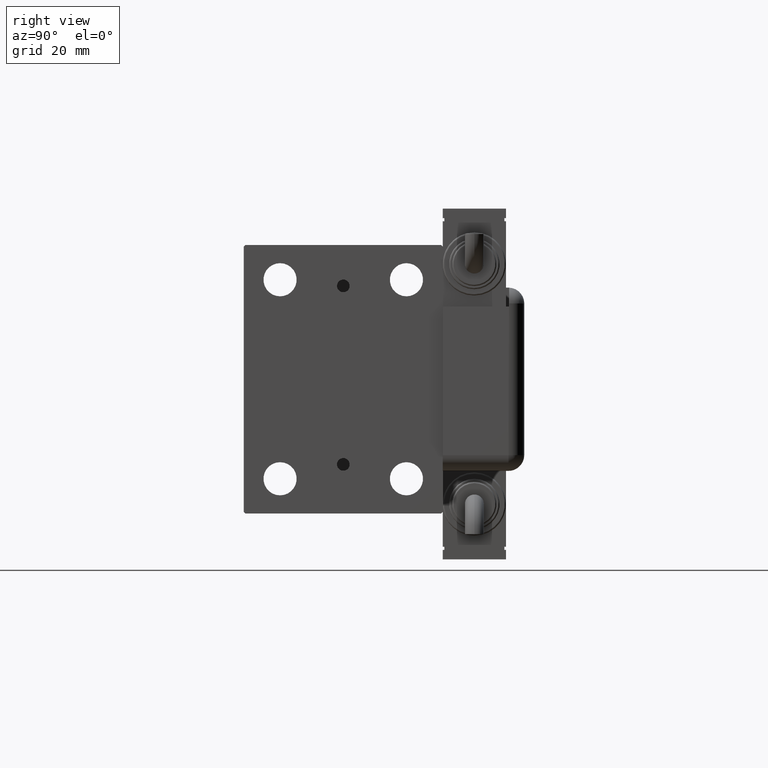
[diagram: clean part render]
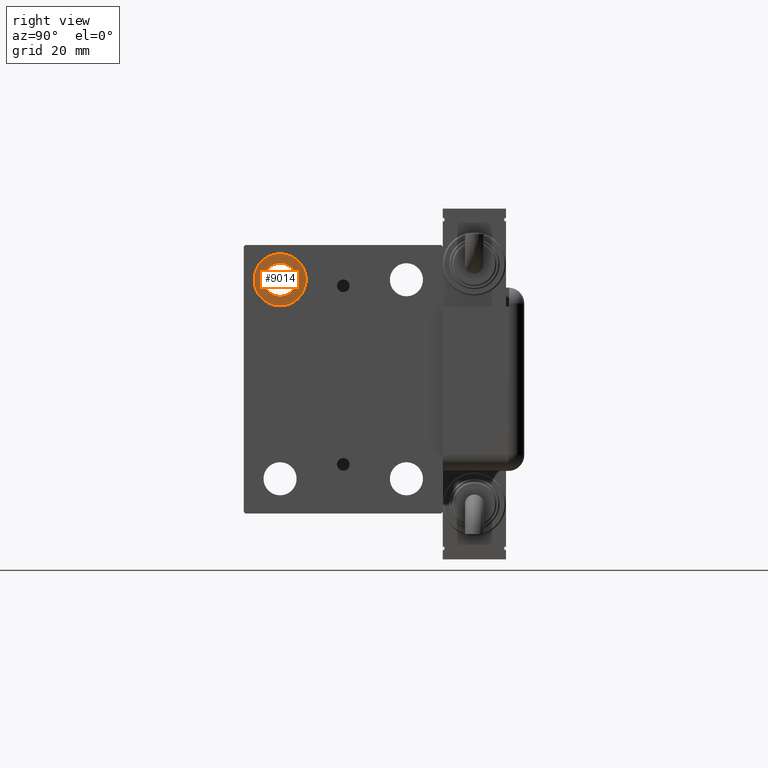
[diagram: same view with one face highlighted and labeled with its STEP entity id]
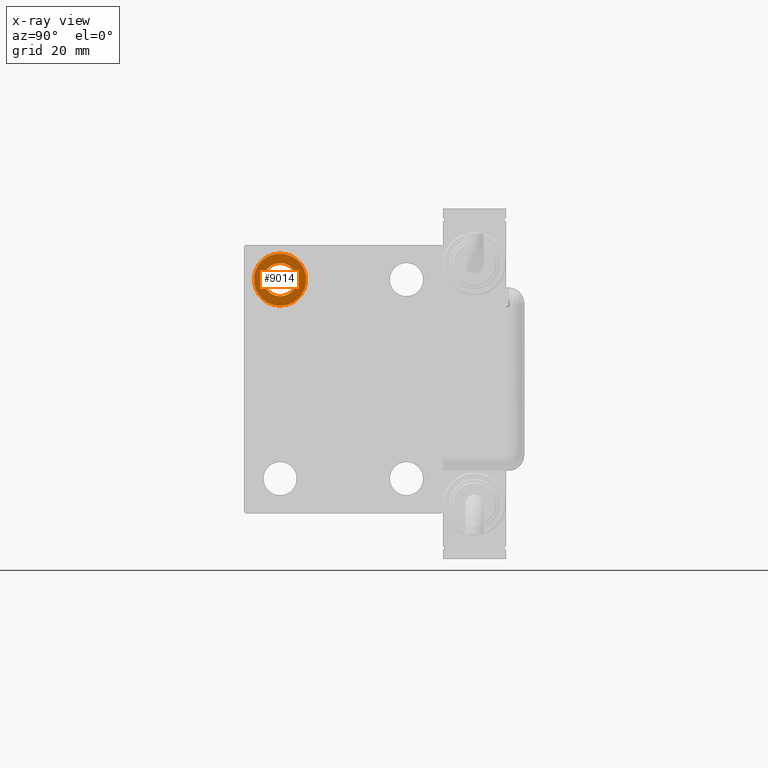
[diagram: x-ray of the same camera — body ghosted, the highlighted face saturated]
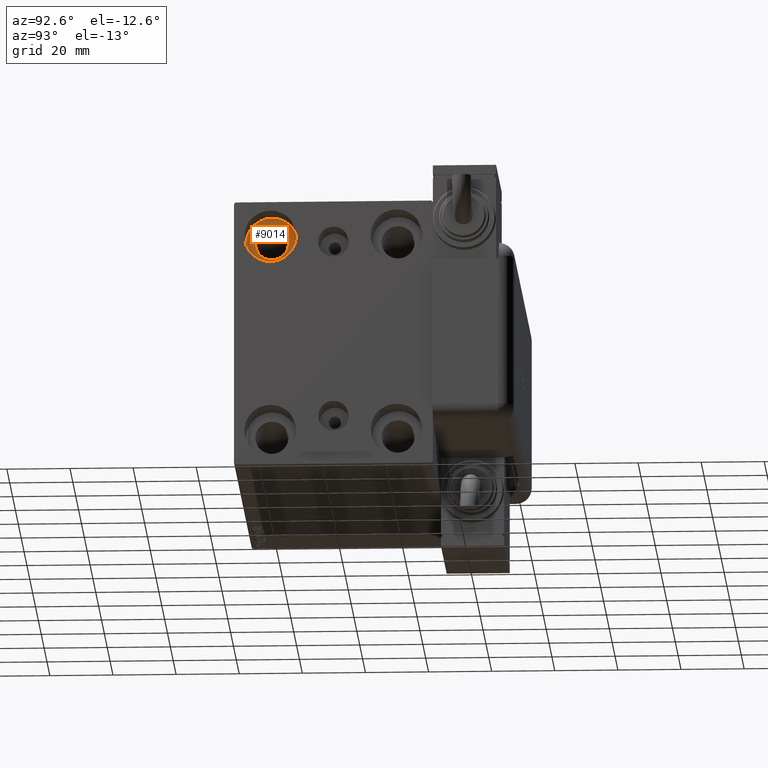
[diagram: same view with one face highlighted and labeled with its STEP entity id]
A machine part, right view. The second image highlights one B-rep face of the part: STEP entity #9014.
The next image is the same camera in x-ray: the body ghosted, the highlighted face saturated — about 0% of this face is hidden behind the body in this view.
A second angle (auxiliary view) of the same face is appended — the face is thin or edge-on in the first view.
In plain terms, the highlighted planar face has unit normal (1, 0, 0).
Its self-contained STEP definition (entity closure, byte-faithful):
#4421 = DIRECTION ( 'NONE',  ( -1.000000000000000000, -0.000000000000000000, -0.000000000000000000 ) ) ;
#4558 = AXIS2_PLACEMENT_3D ( 'NONE', #21754, #20854, #21154 ) ;
#5292 = CARTESIAN_POINT ( 'NONE',  ( 112.0000000000000000, -19.99999999999999645, 26.25000000000000355 ) ) ;
#8175 = EDGE_LOOP ( 'NONE', ( #11412, #45120 ) ) ;
#9014 = ADVANCED_FACE ( 'NONE', ( #10293, #28762 ), #19665, .T. ) ;
#10293 = FACE_OUTER_BOUND ( 'NONE', #8175, .T. ) ;
#11412 = ORIENTED_EDGE ( 'NONE', *, *, #26338, .F. ) ;
#16112 = CARTESIAN_POINT ( 'NONE',  ( 112.0000000000000000, -19.99999999999999645, 31.50000000000000000 ) ) ;
#19665 = PLANE ( 'NONE',  #4558 ) ;
#20854 = DIRECTION ( 'NONE',  ( 1.000000000000000000, 0.000000000000000000, -0.000000000000000000 ) ) ;
#21154 = DIRECTION ( 'NONE',  ( 0.000000000000000000, 0.000000000000000000, 1.000000000000000000 ) ) ;
#21754 = CARTESIAN_POINT ( 'NONE',  ( 112.0000000000000000, 0.000000000000000000, 0.000000000000000000 ) ) ;
#22729 = CIRCLE ( 'NONE', #50805, 5.249999999999997335 ) ;
#24809 = CARTESIAN_POINT ( 'NONE',  ( 112.0000000000000000, -19.99999999999999645, 31.50000000000000000 ) ) ;
#25686 = AXIS2_PLACEMENT_3D ( 'NONE', #24809, #56095, #52125 ) ;
#26338 = EDGE_CURVE ( 'NONE', #40971, #58473, #39783, .T. ) ;
#27322 = CIRCLE ( 'NONE', #32173, 8.249999999999992895 ) ;
#27921 = CARTESIAN_POINT ( 'NONE',  ( 112.0000000000000000, -19.99999999999999645, 36.75000000000000000 ) ) ;
#28762 = FACE_BOUND ( 'NONE', #59697, .T. ) ;
#29195 = VERTEX_POINT ( 'NONE', #27921 ) ;
#30263 = ORIENTED_EDGE ( 'NONE', *, *, #48810, .T. ) ;
#30333 = DIRECTION ( 'NONE',  ( -1.000000000000000000, -0.000000000000000000, -0.000000000000000000 ) ) ;
#30621 = ORIENTED_EDGE ( 'NONE', *, *, #49829, .T. ) ;
#32173 = AXIS2_PLACEMENT_3D ( 'NONE', #16112, #30333, #53415 ) ;
#38573 = EDGE_CURVE ( 'NONE', #58473, #40971, #27322, .T. ) ;
#39783 = CIRCLE ( 'NONE', #41690, 8.249999999999992895 ) ;
#40971 = VERTEX_POINT ( 'NONE', #46601 ) ;
#41201 = VERTEX_POINT ( 'NONE', #5292 ) ;
#41690 = AXIS2_PLACEMENT_3D ( 'NONE', #44524, #53937, #44828 ) ;
#44524 = CARTESIAN_POINT ( 'NONE',  ( 112.0000000000000000, -19.99999999999999645, 31.50000000000000000 ) ) ;
#44828 = DIRECTION ( 'NONE',  ( 0.000000000000000000, 0.000000000000000000, 1.000000000000000000 ) ) ;
#45120 = ORIENTED_EDGE ( 'NONE', *, *, #38573, .F. ) ;
#46267 = CARTESIAN_POINT ( 'NONE',  ( 112.0000000000000000, -19.99999999999999645, 31.50000000000000000 ) ) ;
#46601 = CARTESIAN_POINT ( 'NONE',  ( 112.0000000000000000, -19.99999999999999645, 23.25000000000000355 ) ) ;
#48810 = EDGE_CURVE ( 'NONE', #41201, #29195, #22729, .T. ) ;
#49829 = EDGE_CURVE ( 'NONE', #29195, #41201, #57657, .T. ) ;
#50805 = AXIS2_PLACEMENT_3D ( 'NONE', #46267, #4421, #55682 ) ;
#52125 = DIRECTION ( 'NONE',  ( 0.000000000000000000, 0.000000000000000000, -1.000000000000000000 ) ) ;
#53415 = DIRECTION ( 'NONE',  ( 0.000000000000000000, 0.000000000000000000, 1.000000000000000000 ) ) ;
#53937 = DIRECTION ( 'NONE',  ( -1.000000000000000000, -0.000000000000000000, -0.000000000000000000 ) ) ;
#55682 = DIRECTION ( 'NONE',  ( 0.000000000000000000, 0.000000000000000000, -1.000000000000000000 ) ) ;
#56095 = DIRECTION ( 'NONE',  ( -1.000000000000000000, -0.000000000000000000, -0.000000000000000000 ) ) ;
#57657 = CIRCLE ( 'NONE', #25686, 5.249999999999997335 ) ;
#58473 = VERTEX_POINT ( 'NONE', #58639 ) ;
#58639 = CARTESIAN_POINT ( 'NONE',  ( 112.0000000000000000, -19.99999999999999645, 39.74999999999999289 ) ) ;
#59697 = EDGE_LOOP ( 'NONE', ( #30621, #30263 ) ) ;